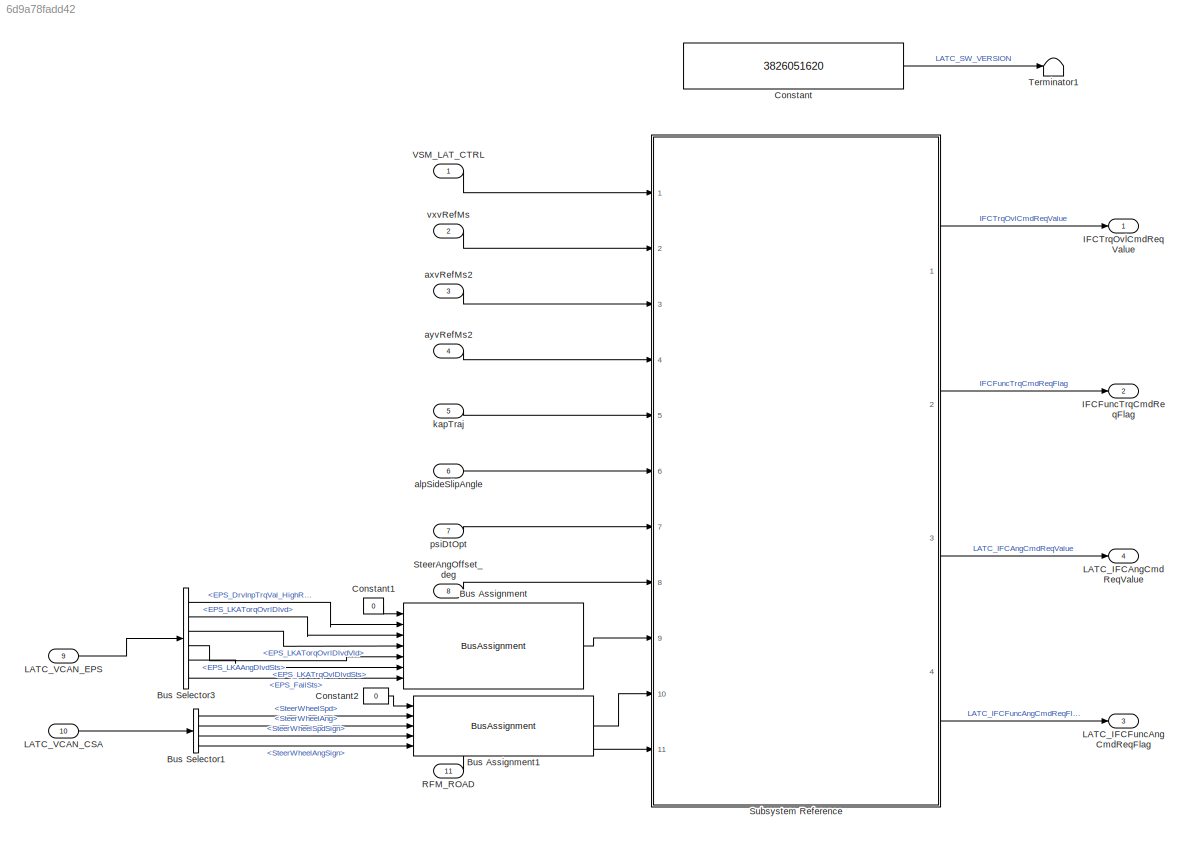
MODEL slx_6d9a78fadd42
KIND model
CONFIG AbsTol = auto
CONFIG EnableMultiTasking = off
CONFIG FixedStep = auto
CONFIG InitFcn = , if any(exist('rtifpga_mdlclblib', 'file') ~= 0), rtifpga_mdlclblib('Init', bdroot); end,\n, if any(exist('dsmpb_private', 'file') ~= 0), dsmpb_private('dsmpb_mdlclblib', 'Init', bdroot); end,\n
CONFIG MaxStep = auto
CONFIG MinStep = auto
CONFIG PostLoadFcn = if any(exist('dsrtsu_mdlpostloadfcn', 'file') ~= 0), dsrtsu_mdlpostloadfcn('Execute', bdroot); end
CONFIG RelTol = 1e-3
CONFIG SampleTimeConstraint = Unconstrained
CONFIG SolverName = FixedStepAuto
CONFIG StartTime = 0.0
CONFIG StopTime = Inf
BLOCK [BusAssignment] Bus Assignment
  AssignedSignals = EPS_DrvInpTrqVal_HighReslolution,EPS_LKATorqOvrlDlvd,EPS_LKATorqOvrlDlvdVld,EPS_LKAAngDlvdSts,EPS_LKATrqOvlDlvdSts,EPS_FailSts
  Ports = [7, 1]
BLOCK [BusAssignment] Bus Assignment1
  AssignedSignals = SteerWheelSpd,SteerWheelAng,SteerWheelSpdSign,SteerWheelAngSign
  Ports = [5, 1]
BLOCK [BusSelector] Bus Selector1
  OutputSignals = SteerWheelSpd,SteerWheelAng,SteerWheelSpdSign,SteerWheelAngSign
  Ports = [1, 4]
BLOCK [BusSelector] Bus Selector3
  OutputSignals = EPS_DrvInpTrqVal_HighReslolution,EPS_LKATorqOvrlDlvd,EPS_LKATorqOvrlDlvdVld,EPS_LKAAngDlvdSts,EPS_LKATrqOvlDlvdSts,EPS_FailSts
  Ports = [1, 6]
BLOCK [Constant] Constant
  OutDataTypeStr = uint32
  Value = 3826051620
BLOCK [Constant] Constant1
  OutDataTypeStr = Bus: VCAN_EPS_MSG_BUS
  Value = 0
BLOCK [Constant] Constant2
  OutDataTypeStr = Bus: VCAN_CSA_MSG_BUS
  Value = 0
BLOCK [Outport] IFCFuncTrqCmdReqFlag
  BusOutputAsStruct = on
  OutDataTypeStr = uint8
  Port = 2
  PortDimensions = 1
BLOCK [Outport] IFCTrqOvlCmdReqValue
  BusOutputAsStruct = on
  OutDataTypeStr = single
  PortDimensions = 1
BLOCK [Outport] LATC_IFCAngCmdReqValue
  BusOutputAsStruct = on
  OutDataTypeStr = single
  Port = 4
  PortDimensions = 1
BLOCK [Outport] LATC_IFCFuncAngCmdReqFlag
  BusOutputAsStruct = on
  OutDataTypeStr = uint8
  Port = 3
  PortDimensions = 1
BLOCK [Inport] LATC_VCAN_CSA
  BusOutputAsStruct = on
  Interpolate = off
  OutDataTypeStr = Bus: LATC_VCAN_CSA_BUS
  Port = 10
  PortDimensions = 1
BLOCK [Inport] LATC_VCAN_EPS
  BusOutputAsStruct = on
  Interpolate = off
  OutDataTypeStr = Bus: LATC_VCAN_EPS_BUS
  Port = 9
  PortDimensions = 1
BLOCK [Inport] RFM_ROAD
  BusOutputAsStruct = on
  Interpolate = off
  OutDataTypeStr = Bus: RFM_ROAD_BUS
  Port = 11
  PortDimensions = 1
BLOCK [Inport] SteerAngOffset_deg
  BusOutputAsStruct = on
  Interpolate = off
  OutDataTypeStr = single
  Port = 8
  PortDimensions = 1
BLOCK [SubSystem] Subsystem Reference
  Ports = [11, 4]
  ReferencedSubsystem = PvtSubSys_LATC
  RequestExecContextInheritance = off
BLOCK [Terminator] Terminator1
BLOCK [Inport] VSM_LAT_CTRL
  BusOutputAsStruct = on
  Interpolate = off
  OutDataTypeStr = Bus: VSM_LAT_CTRL_BUS
  PortDimensions = 1
BLOCK [Inport] alpSideSlipAngle
  BusOutputAsStruct = on
  Interpolate = off
  OutDataTypeStr = single
  Port = 6
  PortDimensions = 1
BLOCK [Inport] axvRefMs2
  BusOutputAsStruct = on
  Interpolate = off
  OutDataTypeStr = single
  Port = 3
  PortDimensions = 1
BLOCK [Inport] ayvRefMs2
  BusOutputAsStruct = on
  Interpolate = off
  OutDataTypeStr = single
  Port = 4
  PortDimensions = 1
BLOCK [Inport] kapTraj
  BusOutputAsStruct = on
  Interpolate = off
  OutDataTypeStr = single
  Port = 5
  PortDimensions = 1
BLOCK [Inport] psiDtOpt
  BusOutputAsStruct = on
  Interpolate = off
  OutDataTypeStr = single
  Port = 7
  PortDimensions = 1
BLOCK [Inport] vxvRefMs
  BusOutputAsStruct = on
  Interpolate = off
  OutDataTypeStr = single
  Port = 2
  PortDimensions = 1
LINE Bus Assignment1:1 -> Subsystem Reference:10
LINE Bus Assignment:1 -> Subsystem Reference:9
LINE Bus Selector1:1 -> Bus Assignment1:2
LINE Bus Selector1:2 -> Bus Assignment1:3
LINE Bus Selector1:3 -> Bus Assignment1:4
LINE Bus Selector1:4 -> Bus Assignment1:5
LINE Bus Selector3:1 -> Bus Assignment:2
LINE Bus Selector3:2 -> Bus Assignment:3
LINE Bus Selector3:3 -> Bus Assignment:4
LINE Bus Selector3:4 -> Bus Assignment:5
LINE Bus Selector3:5 -> Bus Assignment:6
LINE Bus Selector3:6 -> Bus Assignment:7
LINE Constant1:1 -> Bus Assignment:1
LINE Constant2:1 -> Bus Assignment1:1
LINE Constant:1 -> Terminator1:1
LINE LATC_VCAN_CSA:1 -> Bus Selector1:1
LINE LATC_VCAN_EPS:1 -> Bus Selector3:1
LINE RFM_ROAD:1 -> Subsystem Reference:11
LINE SteerAngOffset_deg:1 -> Subsystem Reference:8
LINE Subsystem Reference:1 -> IFCTrqOvlCmdReqValue:1
LINE Subsystem Reference:2 -> IFCFuncTrqCmdReqFlag:1
LINE Subsystem Reference:3 -> LATC_IFCAngCmdReqValue:1
LINE Subsystem Reference:4 -> LATC_IFCFuncAngCmdReqFlag:1
LINE VSM_LAT_CTRL:1 -> Subsystem Reference:1
LINE alpSideSlipAngle:1 -> Subsystem Reference:6
LINE axvRefMs2:1 -> Subsystem Reference:3
LINE ayvRefMs2:1 -> Subsystem Reference:4
LINE kapTraj:1 -> Subsystem Reference:5
LINE psiDtOpt:1 -> Subsystem Reference:7
LINE vxvRefMs:1 -> Subsystem Reference:2
